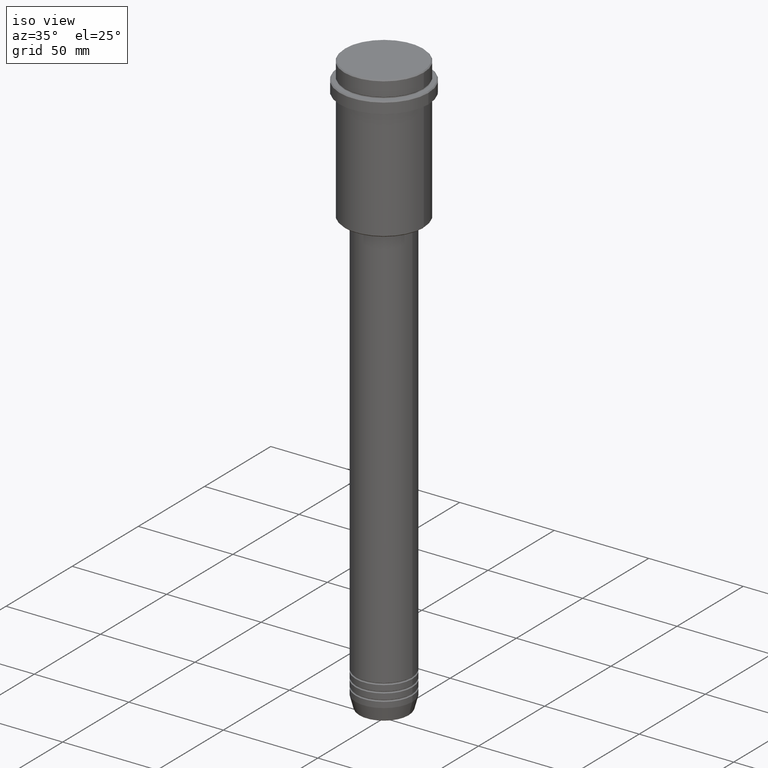
[diagram: clean part render]
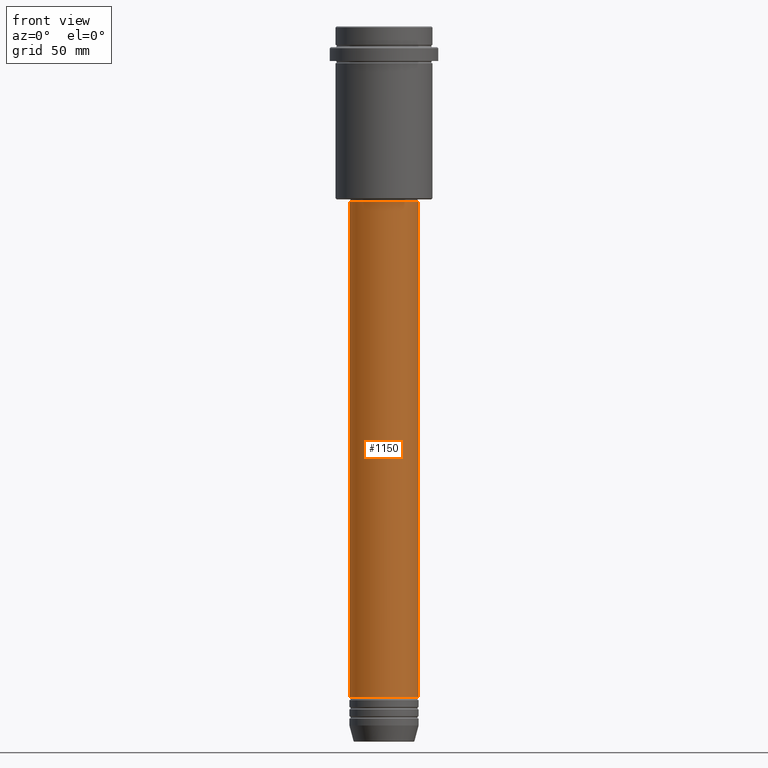
[diagram: tour spotlight — one face highlighted and labeled with its STEP entity id]
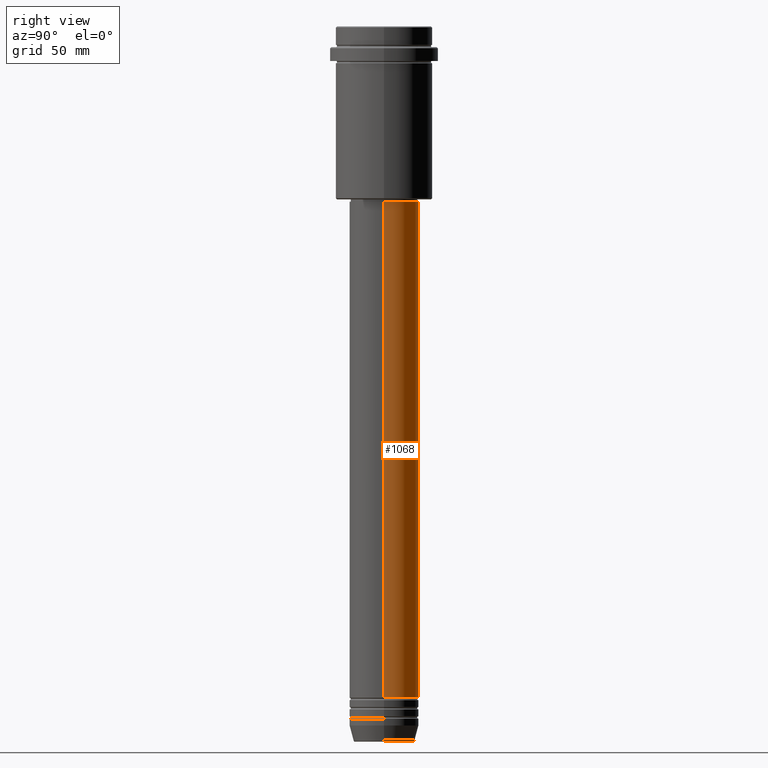
[diagram: tour spotlight — one face highlighted and labeled with its STEP entity id]
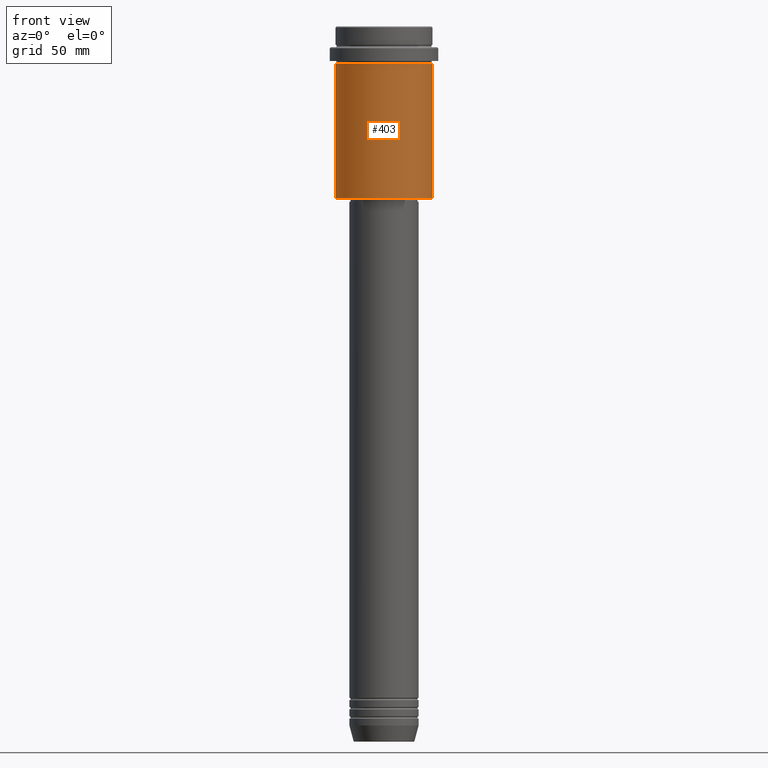
[diagram: tour spotlight — one face highlighted and labeled with its STEP entity id]
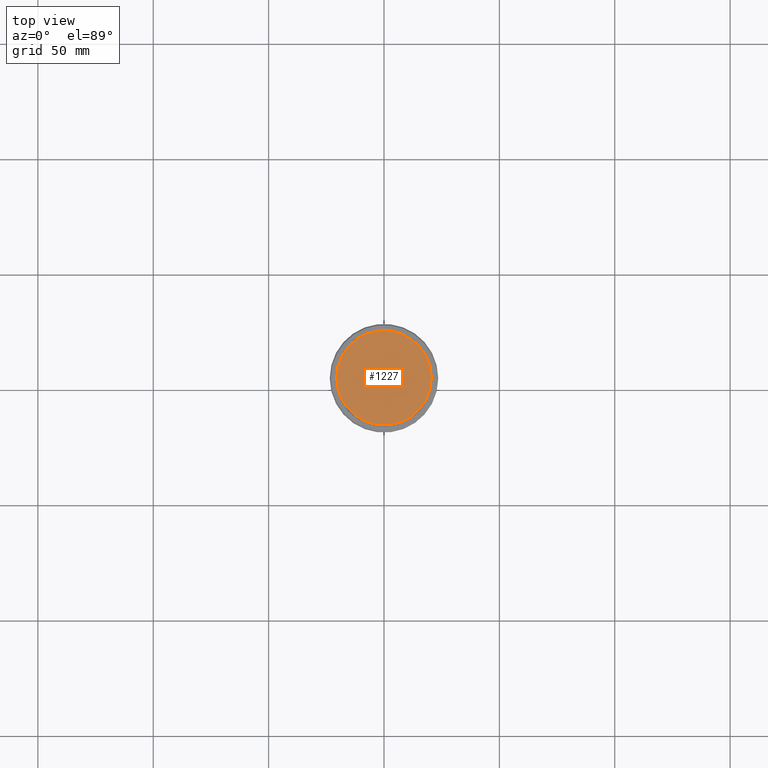
[diagram: tour spotlight — one face highlighted and labeled with its STEP entity id]
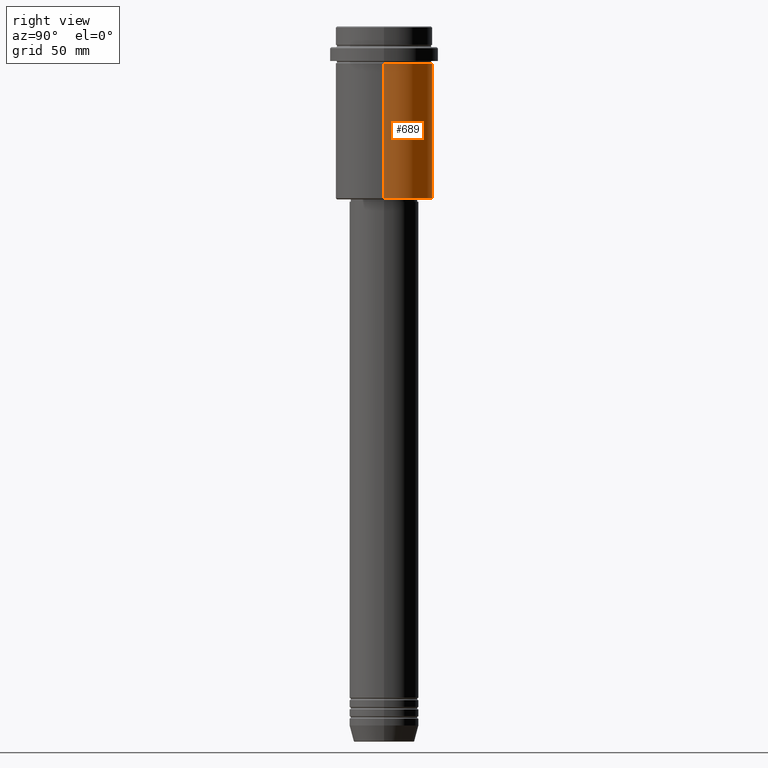
[diagram: tour spotlight — one face highlighted and labeled with its STEP entity id]
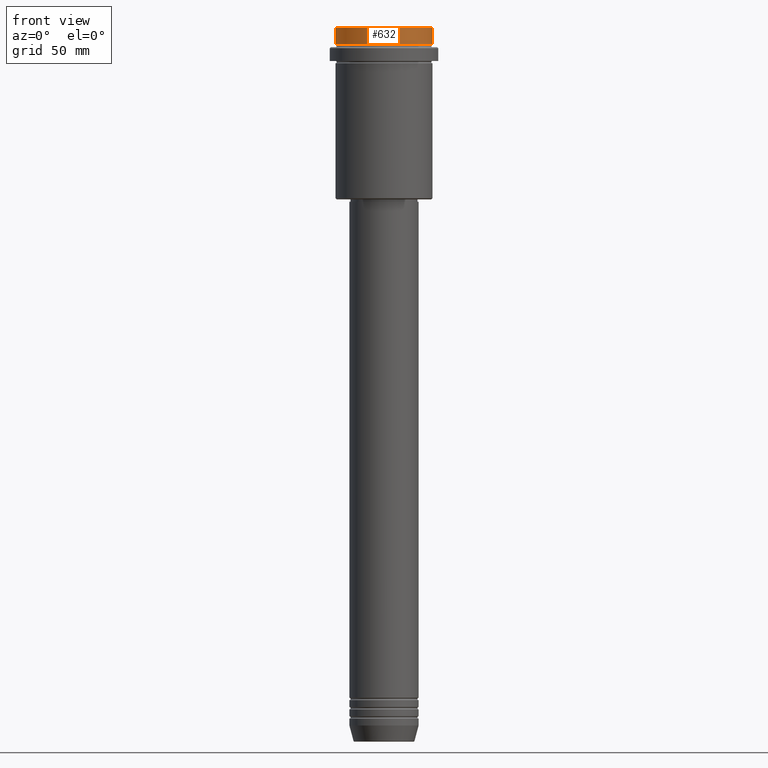
[diagram: tour spotlight — one face highlighted and labeled with its STEP entity id]
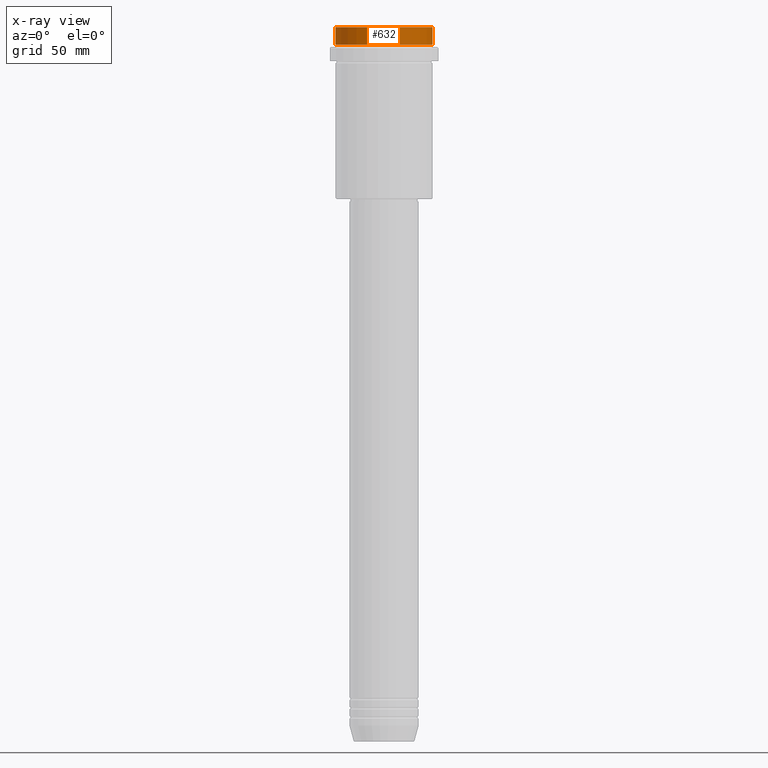
[diagram: x-ray of the same camera — body ghosted, this tour face saturated]
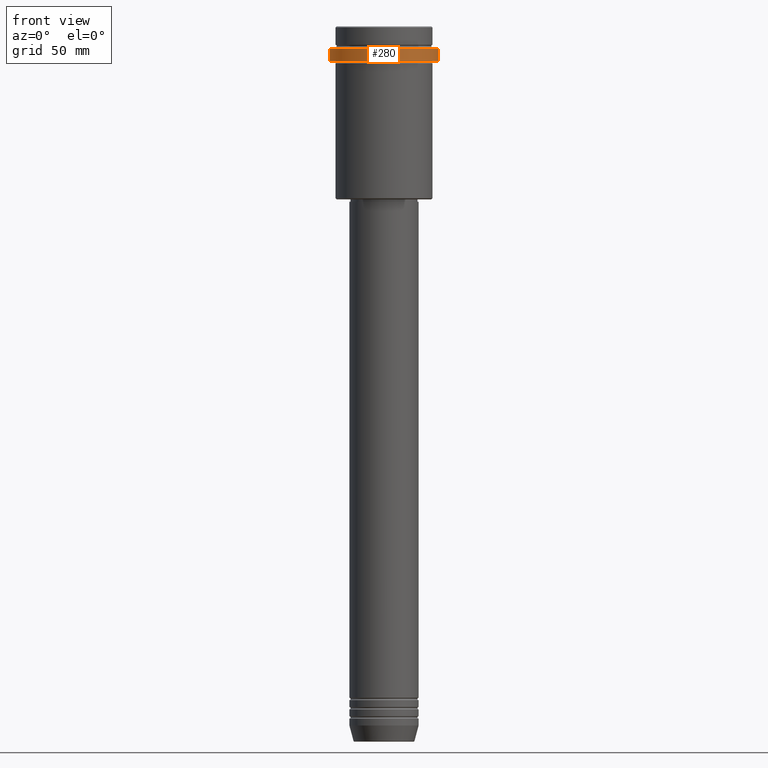
[diagram: tour spotlight — one face highlighted and labeled with its STEP entity id]
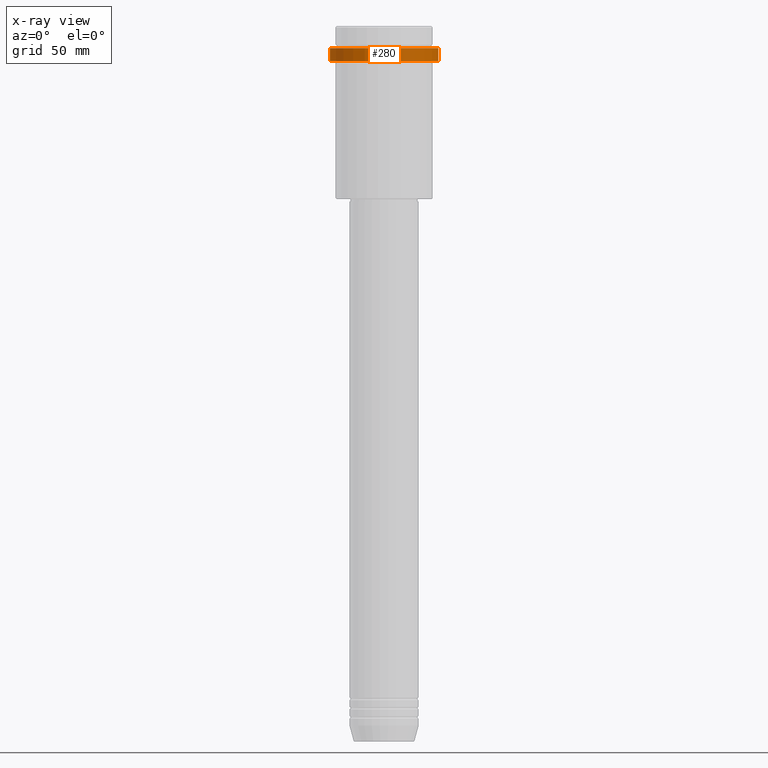
[diagram: x-ray of the same camera — body ghosted, this tour face saturated]
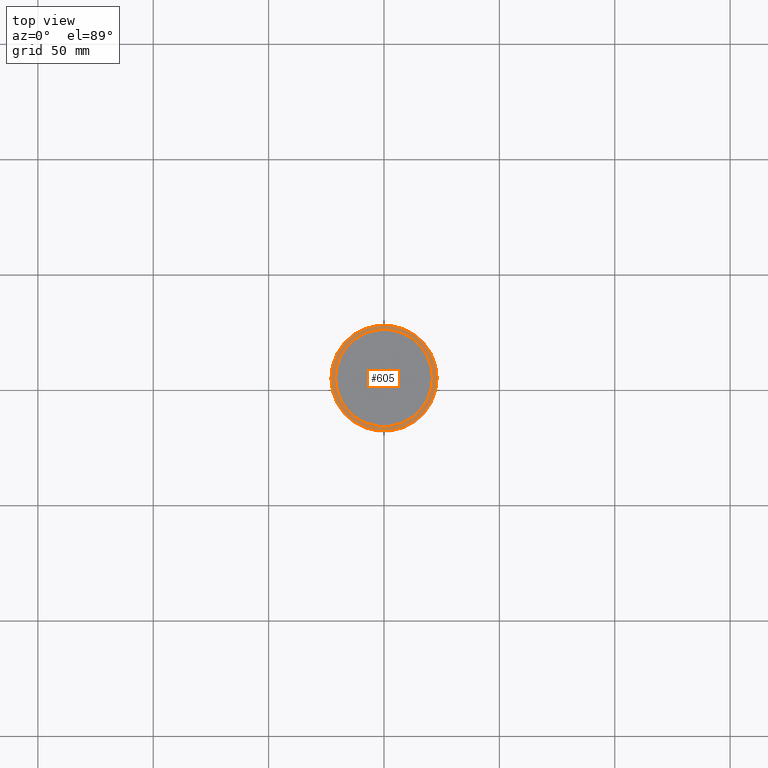
[diagram: tour spotlight — one face highlighted and labeled with its STEP entity id]
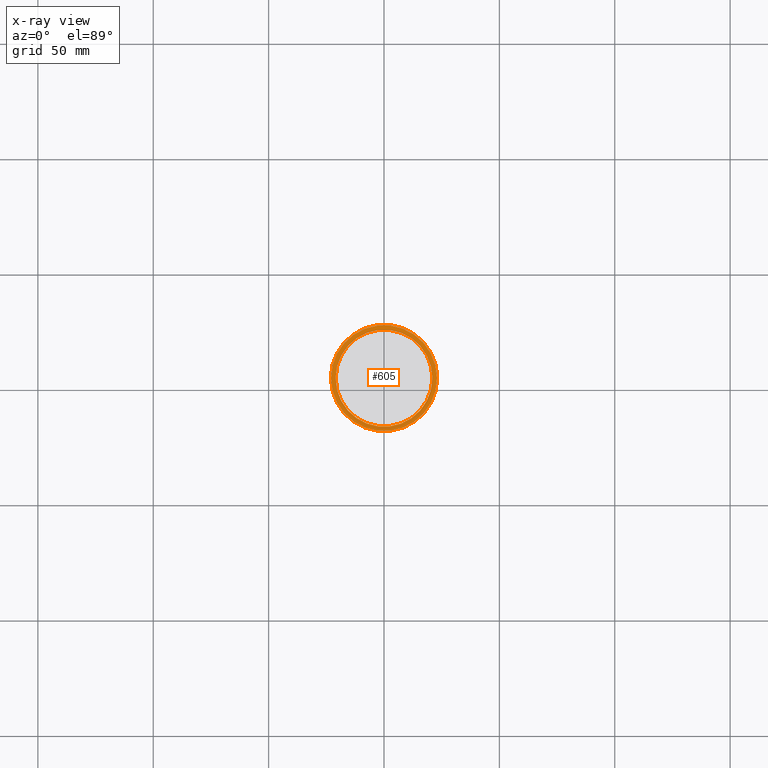
[diagram: x-ray of the same camera — body ghosted, this tour face saturated]
A machine part: a face-by-face anatomy tour. The part has 52 B-rep faces; the first image is the clean iso view, then the 8 largest visible faces are spotlighted one at a time (largest first), each with its STEP entity span.

Face 1 — front view, entity #1150. In plain terms, the highlighted cylindrical surface (edge-blend (fillet) strip) has radius 15 mm, axis along (-0, -0, 1).
Definition (entity closure, byte-faithful):
#61 = AXIS2_PLACEMENT_3D ( 'NONE', #944, #93, #732 ) ;
#64 = VERTEX_POINT ( 'NONE', #300 ) ;
#77 = ORIENTED_EDGE ( 'NONE', *, *, #273, .T. ) ;
#93 = DIRECTION ( 'NONE',  ( -0.000000000000000000, -0.000000000000000000, 1.000000000000000000 ) ) ;
#189 = CARTESIAN_POINT ( 'NONE',  ( 0.000000000000000000, 0.000000000000000000, -290.9999999999998863 ) ) ;
#199 = CIRCLE ( 'NONE', #945, 15.00000000000000000 ) ;
#236 = CARTESIAN_POINT ( 'NONE',  ( -15.00000000000000000, 1.836970198721029589E-15, 0.000000000000000000 ) ) ;
#273 = EDGE_CURVE ( 'NONE', #595, #332, #398, .T. ) ;
#276 = ORIENTED_EDGE ( 'NONE', *, *, #1369, .F. ) ;
#279 = DIRECTION ( 'NONE',  ( -0.000000000000000000, -0.000000000000000000, 1.000000000000000000 ) ) ;
#300 = CARTESIAN_POINT ( 'NONE',  ( -15.00000000000000000, 1.836970198721029589E-15, -290.9999999999998863 ) ) ;
#332 = VERTEX_POINT ( 'NONE', #873 ) ;
#385 = DIRECTION ( 'NONE',  ( -0.000000000000000000, -0.000000000000000000, 1.000000000000000000 ) ) ;
#391 = FACE_OUTER_BOUND ( 'NONE', #716, .T. ) ;
#398 = LINE ( 'NONE', #719, #584 ) ;
#407 = ORIENTED_EDGE ( 'NONE', *, *, #459, .T. ) ;
#452 = LINE ( 'NONE', #236, #618 ) ;
#459 = EDGE_CURVE ( 'NONE', #64, #595, #199, .T. ) ;
#529 = EDGE_CURVE ( 'NONE', #1182, #332, #1183, .T. ) ;
#584 = VECTOR ( 'NONE', #831, 1000.000000000000000 ) ;
#595 = VERTEX_POINT ( 'NONE', #775 ) ;
#618 = VECTOR ( 'NONE', #669, 1000.000000000000000 ) ;
#657 = AXIS2_PLACEMENT_3D ( 'NONE', #1257, #279, #839 ) ;
#669 = DIRECTION ( 'NONE',  ( -0.000000000000000000, -0.000000000000000000, 1.000000000000000000 ) ) ;
#716 = EDGE_LOOP ( 'NONE', ( #276, #407, #77, #1400 ) ) ;
#719 = CARTESIAN_POINT ( 'NONE',  ( 15.00000000000000000, 0.000000000000000000, 0.000000000000000000 ) ) ;
#732 = DIRECTION ( 'NONE',  ( 1.000000000000000000, 0.000000000000000000, 0.000000000000000000 ) ) ;
#775 = CARTESIAN_POINT ( 'NONE',  ( 15.00000000000000000, 0.000000000000000000, -290.9999999999998863 ) ) ;
#796 = DIRECTION ( 'NONE',  ( 1.000000000000000000, 0.000000000000000000, 0.000000000000000000 ) ) ;
#824 = CYLINDRICAL_SURFACE ( 'NONE', #657, 15.00000000000000000 ) ;
#831 = DIRECTION ( 'NONE',  ( -0.000000000000000000, -0.000000000000000000, 1.000000000000000000 ) ) ;
#839 = DIRECTION ( 'NONE',  ( 1.000000000000000000, 0.000000000000000000, 0.000000000000000000 ) ) ;
#873 = CARTESIAN_POINT ( 'NONE',  ( 15.00000000000000000, 0.000000000000000000, -75.99999999999992895 ) ) ;
#944 = CARTESIAN_POINT ( 'NONE',  ( 0.000000000000000000, 0.000000000000000000, -75.99999999999992895 ) ) ;
#945 = AXIS2_PLACEMENT_3D ( 'NONE', #189, #385, #796 ) ;
#1048 = CARTESIAN_POINT ( 'NONE',  ( -15.00000000000000000, 1.836970198721029589E-15, -75.99999999999992895 ) ) ;
#1150 = ADVANCED_FACE ( 'NONE', ( #391 ), #824, .T. ) ;
#1182 = VERTEX_POINT ( 'NONE', #1048 ) ;
#1183 = CIRCLE ( 'NONE', #61, 15.00000000000000000 ) ;
#1257 = CARTESIAN_POINT ( 'NONE',  ( 0.000000000000000000, 0.000000000000000000, 0.000000000000000000 ) ) ;
#1369 = EDGE_CURVE ( 'NONE', #64, #1182, #452, .T. ) ;
#1400 = ORIENTED_EDGE ( 'NONE', *, *, #529, .F. ) ;

Face 2 — right view, entity #1068. In plain terms, the highlighted cylindrical surface (edge-blend (fillet) strip) has radius 15 mm, axis along (-0, -0, 1).
Definition (entity closure, byte-faithful):
#64 = VERTEX_POINT ( 'NONE', #300 ) ;
#211 = ORIENTED_EDGE ( 'NONE', *, *, #826, .T. ) ;
#236 = CARTESIAN_POINT ( 'NONE',  ( -15.00000000000000000, 1.836970198721029589E-15, 0.000000000000000000 ) ) ;
#250 = DIRECTION ( 'NONE',  ( -0.000000000000000000, -0.000000000000000000, 1.000000000000000000 ) ) ;
#273 = EDGE_CURVE ( 'NONE', #595, #332, #398, .T. ) ;
#300 = CARTESIAN_POINT ( 'NONE',  ( -15.00000000000000000, 1.836970198721029589E-15, -290.9999999999998863 ) ) ;
#332 = VERTEX_POINT ( 'NONE', #873 ) ;
#371 = CYLINDRICAL_SURFACE ( 'NONE', #613, 15.00000000000000000 ) ;
#398 = LINE ( 'NONE', #719, #584 ) ;
#452 = LINE ( 'NONE', #236, #618 ) ;
#501 = FACE_OUTER_BOUND ( 'NONE', #1088, .T. ) ;
#582 = CARTESIAN_POINT ( 'NONE',  ( 0.000000000000000000, 0.000000000000000000, 0.000000000000000000 ) ) ;
#584 = VECTOR ( 'NONE', #831, 1000.000000000000000 ) ;
#595 = VERTEX_POINT ( 'NONE', #775 ) ;
#613 = AXIS2_PLACEMENT_3D ( 'NONE', #582, #804, #931 ) ;
#618 = VECTOR ( 'NONE', #669, 1000.000000000000000 ) ;
#640 = ORIENTED_EDGE ( 'NONE', *, *, #273, .F. ) ;
#669 = DIRECTION ( 'NONE',  ( -0.000000000000000000, -0.000000000000000000, 1.000000000000000000 ) ) ;
#719 = CARTESIAN_POINT ( 'NONE',  ( 15.00000000000000000, 0.000000000000000000, 0.000000000000000000 ) ) ;
#733 = EDGE_CURVE ( 'NONE', #332, #1182, #879, .T. ) ;
#758 = CARTESIAN_POINT ( 'NONE',  ( 0.000000000000000000, 0.000000000000000000, -75.99999999999992895 ) ) ;
#775 = CARTESIAN_POINT ( 'NONE',  ( 15.00000000000000000, 0.000000000000000000, -290.9999999999998863 ) ) ;
#804 = DIRECTION ( 'NONE',  ( -0.000000000000000000, -0.000000000000000000, 1.000000000000000000 ) ) ;
#826 = EDGE_CURVE ( 'NONE', #595, #64, #1210, .T. ) ;
#831 = DIRECTION ( 'NONE',  ( -0.000000000000000000, -0.000000000000000000, 1.000000000000000000 ) ) ;
#873 = CARTESIAN_POINT ( 'NONE',  ( 15.00000000000000000, 0.000000000000000000, -75.99999999999992895 ) ) ;
#879 = CIRCLE ( 'NONE', #1340, 15.00000000000000000 ) ;
#891 = DIRECTION ( 'NONE',  ( 1.000000000000000000, 0.000000000000000000, 0.000000000000000000 ) ) ;
#907 = ORIENTED_EDGE ( 'NONE', *, *, #733, .F. ) ;
#931 = DIRECTION ( 'NONE',  ( 1.000000000000000000, 0.000000000000000000, 0.000000000000000000 ) ) ;
#963 = AXIS2_PLACEMENT_3D ( 'NONE', #1332, #250, #891 ) ;
#1040 = DIRECTION ( 'NONE',  ( -0.000000000000000000, -0.000000000000000000, 1.000000000000000000 ) ) ;
#1048 = CARTESIAN_POINT ( 'NONE',  ( -15.00000000000000000, 1.836970198721029589E-15, -75.99999999999992895 ) ) ;
#1068 = ADVANCED_FACE ( 'NONE', ( #501 ), #371, .T. ) ;
#1088 = EDGE_LOOP ( 'NONE', ( #211, #1308, #907, #640 ) ) ;
#1180 = DIRECTION ( 'NONE',  ( 1.000000000000000000, 0.000000000000000000, 0.000000000000000000 ) ) ;
#1182 = VERTEX_POINT ( 'NONE', #1048 ) ;
#1210 = CIRCLE ( 'NONE', #963, 15.00000000000000000 ) ;
#1308 = ORIENTED_EDGE ( 'NONE', *, *, #1369, .T. ) ;
#1332 = CARTESIAN_POINT ( 'NONE',  ( 0.000000000000000000, 0.000000000000000000, -290.9999999999998863 ) ) ;
#1340 = AXIS2_PLACEMENT_3D ( 'NONE', #758, #1040, #1180 ) ;
#1369 = EDGE_CURVE ( 'NONE', #64, #1182, #452, .T. ) ;

Face 3 — front view, entity #403. In plain terms, the highlighted cylindrical surface (partial cylindrical patch) has radius 21 mm, axis along (-0, -0, 1).
Definition (entity closure, byte-faithful):
#11 = VECTOR ( 'NONE', #1335, 1000.000000000000000 ) ;
#83 = EDGE_LOOP ( 'NONE', ( #1063, #114, #943, #1230 ) ) ;
#86 = CARTESIAN_POINT ( 'NONE',  ( 0.000000000000000000, 0.000000000000000000, -16.00000000000000355 ) ) ;
#109 = EDGE_CURVE ( 'NONE', #648, #218, #1337, .T. ) ;
#114 = ORIENTED_EDGE ( 'NONE', *, *, #109, .T. ) ;
#165 = EDGE_CURVE ( 'NONE', #648, #514, #681, .T. ) ;
#218 = VERTEX_POINT ( 'NONE', #994 ) ;
#244 = VECTOR ( 'NONE', #377, 1000.000000000000000 ) ;
#307 = DIRECTION ( 'NONE',  ( -0.000000000000000000, -0.000000000000000000, 1.000000000000000000 ) ) ;
#372 = EDGE_CURVE ( 'NONE', #218, #1273, #1016, .T. ) ;
#377 = DIRECTION ( 'NONE',  ( -0.000000000000000000, -0.000000000000000000, 1.000000000000000000 ) ) ;
#403 = ADVANCED_FACE ( 'NONE', ( #1005 ), #710, .T. ) ;
#405 = DIRECTION ( 'NONE',  ( -0.000000000000000000, -0.000000000000000000, 1.000000000000000000 ) ) ;
#476 = DIRECTION ( 'NONE',  ( -0.000000000000000000, -0.000000000000000000, 1.000000000000000000 ) ) ;
#492 = AXIS2_PLACEMENT_3D ( 'NONE', #1179, #307, #1065 ) ;
#497 = CARTESIAN_POINT ( 'NONE',  ( 20.99999999999999645, 0.000000000000000000, 0.000000000000000000 ) ) ;
#499 = AXIS2_PLACEMENT_3D ( 'NONE', #1037, #476, #1229 ) ;
#500 = CIRCLE ( 'NONE', #793, 20.99999999999999645 ) ;
#514 = VERTEX_POINT ( 'NONE', #1066 ) ;
#648 = VERTEX_POINT ( 'NONE', #1043 ) ;
#681 = LINE ( 'NONE', #1091, #11 ) ;
#683 = EDGE_CURVE ( 'NONE', #514, #1273, #500, .T. ) ;
#710 = CYLINDRICAL_SURFACE ( 'NONE', #499, 20.99999999999999645 ) ;
#793 = AXIS2_PLACEMENT_3D ( 'NONE', #86, #405, #1399 ) ;
#943 = ORIENTED_EDGE ( 'NONE', *, *, #372, .T. ) ;
#994 = CARTESIAN_POINT ( 'NONE',  ( 20.99999999999999645, 0.000000000000000000, -74.50000000000002842 ) ) ;
#1005 = FACE_OUTER_BOUND ( 'NONE', #83, .T. ) ;
#1016 = LINE ( 'NONE', #497, #244 ) ;
#1037 = CARTESIAN_POINT ( 'NONE',  ( 0.000000000000000000, 0.000000000000000000, 0.000000000000000000 ) ) ;
#1043 = CARTESIAN_POINT ( 'NONE',  ( -20.99999999999999645, 2.571758278209441267E-15, -74.50000000000002842 ) ) ;
#1063 = ORIENTED_EDGE ( 'NONE', *, *, #165, .F. ) ;
#1065 = DIRECTION ( 'NONE',  ( -1.000000000000000000, 0.000000000000000000, 0.000000000000000000 ) ) ;
#1066 = CARTESIAN_POINT ( 'NONE',  ( -20.99999999999999645, 2.571758278209441267E-15, -16.00000000000000355 ) ) ;
#1091 = CARTESIAN_POINT ( 'NONE',  ( -20.99999999999999645, 2.571758278209441267E-15, 0.000000000000000000 ) ) ;
#1171 = CARTESIAN_POINT ( 'NONE',  ( 20.99999999999999645, 0.000000000000000000, -16.00000000000000355 ) ) ;
#1179 = CARTESIAN_POINT ( 'NONE',  ( 0.000000000000000000, 0.000000000000000000, -74.50000000000002842 ) ) ;
#1229 = DIRECTION ( 'NONE',  ( 1.000000000000000000, 0.000000000000000000, 0.000000000000000000 ) ) ;
#1230 = ORIENTED_EDGE ( 'NONE', *, *, #683, .F. ) ;
#1273 = VERTEX_POINT ( 'NONE', #1171 ) ;
#1335 = DIRECTION ( 'NONE',  ( -0.000000000000000000, -0.000000000000000000, 1.000000000000000000 ) ) ;
#1337 = CIRCLE ( 'NONE', #492, 20.99999999999999645 ) ;
#1399 = DIRECTION ( 'NONE',  ( 1.000000000000000000, 0.000000000000000000, 0.000000000000000000 ) ) ;

Face 4 — top view, entity #1227. In plain terms, the highlighted planar face has unit normal (0, -0, 1).
Definition (entity closure, byte-faithful):
#43 = CARTESIAN_POINT ( 'NONE',  ( -20.50000000000004619, 0.000000000000000000, 0.000000000000000000 ) ) ;
#71 = CARTESIAN_POINT ( 'NONE',  ( 0.000000000000000000, 0.000000000000000000, 0.000000000000000000 ) ) ;
#129 = VERTEX_POINT ( 'NONE', #43 ) ;
#378 = VERTEX_POINT ( 'NONE', #1367 ) ;
#510 = DIRECTION ( 'NONE',  ( -0.000000000000000000, -0.000000000000000000, 1.000000000000000000 ) ) ;
#575 = ORIENTED_EDGE ( 'NONE', *, *, #661, .T. ) ;
#611 = CIRCLE ( 'NONE', #856, 20.50000000000004619 ) ;
#656 = AXIS2_PLACEMENT_3D ( 'NONE', #71, #510, #938 ) ;
#661 = EDGE_CURVE ( 'NONE', #129, #378, #1009, .T. ) ;
#665 = EDGE_CURVE ( 'NONE', #378, #129, #611, .T. ) ;
#730 = CARTESIAN_POINT ( 'NONE',  ( 0.000000000000000000, 0.000000000000000000, 0.000000000000000000 ) ) ;
#740 = DIRECTION ( 'NONE',  ( 0.000000000000000000, -0.000000000000000000, 1.000000000000000000 ) ) ;
#741 = DIRECTION ( 'NONE',  ( 1.000000000000000000, 0.000000000000000000, 0.000000000000000000 ) ) ;
#770 = EDGE_LOOP ( 'NONE', ( #575, #1300 ) ) ;
#830 = FACE_OUTER_BOUND ( 'NONE', #770, .T. ) ;
#838 = AXIS2_PLACEMENT_3D ( 'NONE', #1267, #740, #1408 ) ;
#856 = AXIS2_PLACEMENT_3D ( 'NONE', #730, #1282, #741 ) ;
#938 = DIRECTION ( 'NONE',  ( 1.000000000000000000, 0.000000000000000000, 0.000000000000000000 ) ) ;
#962 = PLANE ( 'NONE',  #838 ) ;
#1009 = CIRCLE ( 'NONE', #656, 20.50000000000004619 ) ;
#1227 = ADVANCED_FACE ( 'NONE', ( #830 ), #962, .T. ) ;
#1267 = CARTESIAN_POINT ( 'NONE',  ( 0.000000000000000000, 0.000000000000000000, 0.000000000000000000 ) ) ;
#1282 = DIRECTION ( 'NONE',  ( -0.000000000000000000, -0.000000000000000000, 1.000000000000000000 ) ) ;
#1300 = ORIENTED_EDGE ( 'NONE', *, *, #665, .T. ) ;
#1367 = CARTESIAN_POINT ( 'NONE',  ( 20.50000000000004619, 2.541142108230760635E-15, 0.000000000000000000 ) ) ;
#1408 = DIRECTION ( 'NONE',  ( 1.000000000000000000, 0.000000000000000000, 0.000000000000000000 ) ) ;

Face 5 — right view, entity #689. In plain terms, the highlighted cylindrical surface (partial cylindrical patch) has radius 21 mm, axis along (-0, -0, 1).
Definition (entity closure, byte-faithful):
#11 = VECTOR ( 'NONE', #1335, 1000.000000000000000 ) ;
#113 = CARTESIAN_POINT ( 'NONE',  ( 0.000000000000000000, 0.000000000000000000, -16.00000000000000355 ) ) ;
#165 = EDGE_CURVE ( 'NONE', #648, #514, #681, .T. ) ;
#208 = CARTESIAN_POINT ( 'NONE',  ( 0.000000000000000000, 0.000000000000000000, 0.000000000000000000 ) ) ;
#218 = VERTEX_POINT ( 'NONE', #994 ) ;
#244 = VECTOR ( 'NONE', #377, 1000.000000000000000 ) ;
#266 = AXIS2_PLACEMENT_3D ( 'NONE', #208, #865, #304 ) ;
#304 = DIRECTION ( 'NONE',  ( 1.000000000000000000, 0.000000000000000000, 0.000000000000000000 ) ) ;
#372 = EDGE_CURVE ( 'NONE', #218, #1273, #1016, .T. ) ;
#377 = DIRECTION ( 'NONE',  ( -0.000000000000000000, -0.000000000000000000, 1.000000000000000000 ) ) ;
#442 = DIRECTION ( 'NONE',  ( 1.000000000000000000, 0.000000000000000000, 0.000000000000000000 ) ) ;
#468 = DIRECTION ( 'NONE',  ( -1.000000000000000000, 0.000000000000000000, 0.000000000000000000 ) ) ;
#475 = AXIS2_PLACEMENT_3D ( 'NONE', #598, #787, #468 ) ;
#497 = CARTESIAN_POINT ( 'NONE',  ( 20.99999999999999645, 0.000000000000000000, 0.000000000000000000 ) ) ;
#514 = VERTEX_POINT ( 'NONE', #1066 ) ;
#591 = EDGE_LOOP ( 'NONE', ( #1135, #781, #834, #977 ) ) ;
#598 = CARTESIAN_POINT ( 'NONE',  ( 0.000000000000000000, 0.000000000000000000, -74.50000000000002842 ) ) ;
#648 = VERTEX_POINT ( 'NONE', #1043 ) ;
#681 = LINE ( 'NONE', #1091, #11 ) ;
#689 = ADVANCED_FACE ( 'NONE', ( #841 ), #1288, .T. ) ;
#781 = ORIENTED_EDGE ( 'NONE', *, *, #165, .T. ) ;
#787 = DIRECTION ( 'NONE',  ( -0.000000000000000000, -0.000000000000000000, 1.000000000000000000 ) ) ;
#805 = EDGE_CURVE ( 'NONE', #218, #648, #1362, .T. ) ;
#834 = ORIENTED_EDGE ( 'NONE', *, *, #1355, .F. ) ;
#841 = FACE_OUTER_BOUND ( 'NONE', #591, .T. ) ;
#865 = DIRECTION ( 'NONE',  ( -0.000000000000000000, -0.000000000000000000, 1.000000000000000000 ) ) ;
#977 = ORIENTED_EDGE ( 'NONE', *, *, #372, .F. ) ;
#978 = DIRECTION ( 'NONE',  ( -0.000000000000000000, -0.000000000000000000, 1.000000000000000000 ) ) ;
#994 = CARTESIAN_POINT ( 'NONE',  ( 20.99999999999999645, 0.000000000000000000, -74.50000000000002842 ) ) ;
#1016 = LINE ( 'NONE', #497, #244 ) ;
#1043 = CARTESIAN_POINT ( 'NONE',  ( -20.99999999999999645, 2.571758278209441267E-15, -74.50000000000002842 ) ) ;
#1066 = CARTESIAN_POINT ( 'NONE',  ( -20.99999999999999645, 2.571758278209441267E-15, -16.00000000000000355 ) ) ;
#1091 = CARTESIAN_POINT ( 'NONE',  ( -20.99999999999999645, 2.571758278209441267E-15, 0.000000000000000000 ) ) ;
#1135 = ORIENTED_EDGE ( 'NONE', *, *, #805, .T. ) ;
#1171 = CARTESIAN_POINT ( 'NONE',  ( 20.99999999999999645, 0.000000000000000000, -16.00000000000000355 ) ) ;
#1215 = CIRCLE ( 'NONE', #1219, 20.99999999999999645 ) ;
#1219 = AXIS2_PLACEMENT_3D ( 'NONE', #113, #978, #442 ) ;
#1273 = VERTEX_POINT ( 'NONE', #1171 ) ;
#1288 = CYLINDRICAL_SURFACE ( 'NONE', #266, 20.99999999999999645 ) ;
#1335 = DIRECTION ( 'NONE',  ( -0.000000000000000000, -0.000000000000000000, 1.000000000000000000 ) ) ;
#1355 = EDGE_CURVE ( 'NONE', #1273, #514, #1215, .T. ) ;
#1362 = CIRCLE ( 'NONE', #475, 20.99999999999999645 ) ;

Face 6 — front view, entity #632. An x-ray twin of the same camera follows (body ghosted, this face saturated) — the face is partly hidden behind the body. In plain terms, the highlighted cylindrical surface (partial cylindrical patch) has radius 21 mm, axis along (-0, -0, 1).
Definition (entity closure, byte-faithful):
#46 = DIRECTION ( 'NONE',  ( 1.000000000000000000, 0.000000000000000000, 0.000000000000000000 ) ) ;
#149 = DIRECTION ( 'NONE',  ( 0.000000000000000000, 0.000000000000000000, -1.000000000000000000 ) ) ;
#167 = CYLINDRICAL_SURFACE ( 'NONE', #835, 20.99999999999999645 ) ;
#178 = AXIS2_PLACEMENT_3D ( 'NONE', #1117, #149, #46 ) ;
#216 = ORIENTED_EDGE ( 'NONE', *, *, #1124, .T. ) ;
#247 = VECTOR ( 'NONE', #687, 1000.000000000000000 ) ;
#281 = DIRECTION ( 'NONE',  ( 1.000000000000000000, 0.000000000000000000, 0.000000000000000000 ) ) ;
#306 = DIRECTION ( 'NONE',  ( -0.000000000000000000, -0.000000000000000000, 1.000000000000000000 ) ) ;
#420 = DIRECTION ( 'NONE',  ( 1.000000000000000000, 0.000000000000000000, 0.000000000000000000 ) ) ;
#490 = VERTEX_POINT ( 'NONE', #1121 ) ;
#513 = FACE_OUTER_BOUND ( 'NONE', #1006, .T. ) ;
#548 = EDGE_CURVE ( 'NONE', #490, #828, #627, .T. ) ;
#557 = CARTESIAN_POINT ( 'NONE',  ( -20.99999999999999645, 2.571758278209441267E-15, -0.4999999999999518718 ) ) ;
#627 = LINE ( 'NONE', #639, #744 ) ;
#632 = ADVANCED_FACE ( 'NONE', ( #513 ), #167, .T. ) ;
#639 = CARTESIAN_POINT ( 'NONE',  ( -20.99999999999999645, 2.571758278209441267E-15, 0.000000000000000000 ) ) ;
#671 = CARTESIAN_POINT ( 'NONE',  ( 20.99999999999999645, 0.000000000000000000, -0.4999999999999518718 ) ) ;
#687 = DIRECTION ( 'NONE',  ( -0.000000000000000000, -0.000000000000000000, 1.000000000000000000 ) ) ;
#711 = ORIENTED_EDGE ( 'NONE', *, *, #548, .F. ) ;
#744 = VECTOR ( 'NONE', #306, 1000.000000000000000 ) ;
#774 = LINE ( 'NONE', #1211, #247 ) ;
#803 = ORIENTED_EDGE ( 'NONE', *, *, #1170, .T. ) ;
#828 = VERTEX_POINT ( 'NONE', #557 ) ;
#835 = AXIS2_PLACEMENT_3D ( 'NONE', #1386, #1032, #281 ) ;
#878 = CARTESIAN_POINT ( 'NONE',  ( 20.99999999999999645, 0.000000000000000000, -7.999999999999998224 ) ) ;
#913 = VERTEX_POINT ( 'NONE', #671 ) ;
#919 = VERTEX_POINT ( 'NONE', #878 ) ;
#936 = EDGE_CURVE ( 'NONE', #919, #913, #774, .T. ) ;
#957 = DIRECTION ( 'NONE',  ( -0.000000000000000000, -0.000000000000000000, 1.000000000000000000 ) ) ;
#1006 = EDGE_LOOP ( 'NONE', ( #711, #803, #1391, #216 ) ) ;
#1032 = DIRECTION ( 'NONE',  ( -0.000000000000000000, -0.000000000000000000, 1.000000000000000000 ) ) ;
#1078 = CIRCLE ( 'NONE', #1098, 20.99999999999999645 ) ;
#1098 = AXIS2_PLACEMENT_3D ( 'NONE', #1392, #957, #420 ) ;
#1117 = CARTESIAN_POINT ( 'NONE',  ( 0.000000000000000000, 0.000000000000000000, -0.4999999999999518718 ) ) ;
#1121 = CARTESIAN_POINT ( 'NONE',  ( -20.99999999999999645, 2.571758278209441267E-15, -7.999999999999998224 ) ) ;
#1124 = EDGE_CURVE ( 'NONE', #913, #828, #1214, .T. ) ;
#1170 = EDGE_CURVE ( 'NONE', #490, #919, #1078, .T. ) ;
#1211 = CARTESIAN_POINT ( 'NONE',  ( 20.99999999999999645, 0.000000000000000000, 0.000000000000000000 ) ) ;
#1214 = CIRCLE ( 'NONE', #178, 20.99999999999999645 ) ;
#1386 = CARTESIAN_POINT ( 'NONE',  ( 0.000000000000000000, 0.000000000000000000, 0.000000000000000000 ) ) ;
#1391 = ORIENTED_EDGE ( 'NONE', *, *, #936, .T. ) ;
#1392 = CARTESIAN_POINT ( 'NONE',  ( 0.000000000000000000, 0.000000000000000000, -7.999999999999998224 ) ) ;

Face 7 — front view, entity #280. An x-ray twin of the same camera follows (body ghosted, this face saturated) — the face is partly hidden behind the body. In plain terms, the highlighted cylindrical surface (partial cylindrical patch) has radius 23.5 mm, axis along (-0, -0, 1).
Definition (entity closure, byte-faithful):
#4 = VERTEX_POINT ( 'NONE', #1252 ) ;
#8 = DIRECTION ( 'NONE',  ( 1.000000000000000000, 0.000000000000000000, 0.000000000000000000 ) ) ;
#10 = CARTESIAN_POINT ( 'NONE',  ( -23.50000000000000000, 2.877919977996280320E-15, 0.000000000000000000 ) ) ;
#17 = CIRCLE ( 'NONE', #636, 23.50000000000000000 ) ;
#21 = DIRECTION ( 'NONE',  ( -0.000000000000000000, -0.000000000000000000, 1.000000000000000000 ) ) ;
#34 = VECTOR ( 'NONE', #21, 1000.000000000000000 ) ;
#128 = VECTOR ( 'NONE', #322, 1000.000000000000000 ) ;
#190 = ORIENTED_EDGE ( 'NONE', *, *, #1051, .T. ) ;
#226 = EDGE_CURVE ( 'NONE', #362, #4, #1217, .T. ) ;
#253 = ORIENTED_EDGE ( 'NONE', *, *, #226, .F. ) ;
#278 = VERTEX_POINT ( 'NONE', #993 ) ;
#280 = ADVANCED_FACE ( 'NONE', ( #544 ), #351, .T. ) ;
#308 = CARTESIAN_POINT ( 'NONE',  ( 23.50000000000000000, 0.000000000000000000, -9.500000000000001776 ) ) ;
#322 = DIRECTION ( 'NONE',  ( -0.000000000000000000, -0.000000000000000000, 1.000000000000000000 ) ) ;
#329 = CARTESIAN_POINT ( 'NONE',  ( -23.50000000000000711, 2.877919977996281109E-15, -15.00000000000000178 ) ) ;
#349 = EDGE_CURVE ( 'NONE', #362, #278, #1271, .T. ) ;
#351 = CYLINDRICAL_SURFACE ( 'NONE', #700, 23.50000000000000000 ) ;
#362 = VERTEX_POINT ( 'NONE', #329 ) ;
#511 = VERTEX_POINT ( 'NONE', #308 ) ;
#544 = FACE_OUTER_BOUND ( 'NONE', #1199, .T. ) ;
#612 = CARTESIAN_POINT ( 'NONE',  ( 23.50000000000000000, 0.000000000000000000, 0.000000000000000000 ) ) ;
#624 = ORIENTED_EDGE ( 'NONE', *, *, #349, .T. ) ;
#636 = AXIS2_PLACEMENT_3D ( 'NONE', #1375, #920, #914 ) ;
#658 = DIRECTION ( 'NONE',  ( -0.000000000000000000, -0.000000000000000000, 1.000000000000000000 ) ) ;
#700 = AXIS2_PLACEMENT_3D ( 'NONE', #968, #767, #8 ) ;
#721 = EDGE_CURVE ( 'NONE', #278, #511, #1307, .T. ) ;
#767 = DIRECTION ( 'NONE',  ( -0.000000000000000000, -0.000000000000000000, 1.000000000000000000 ) ) ;
#914 = DIRECTION ( 'NONE',  ( 1.000000000000000000, 0.000000000000000000, 0.000000000000000000 ) ) ;
#920 = DIRECTION ( 'NONE',  ( 0.000000000000000000, 0.000000000000000000, -1.000000000000000000 ) ) ;
#922 = AXIS2_PLACEMENT_3D ( 'NONE', #975, #658, #1312 ) ;
#968 = CARTESIAN_POINT ( 'NONE',  ( 0.000000000000000000, 0.000000000000000000, 0.000000000000000000 ) ) ;
#975 = CARTESIAN_POINT ( 'NONE',  ( 0.000000000000000000, 0.000000000000000000, -15.00000000000000178 ) ) ;
#993 = CARTESIAN_POINT ( 'NONE',  ( 23.50000000000000355, 0.000000000000000000, -15.00000000000000178 ) ) ;
#1051 = EDGE_CURVE ( 'NONE', #511, #4, #17, .T. ) ;
#1155 = ORIENTED_EDGE ( 'NONE', *, *, #721, .T. ) ;
#1199 = EDGE_LOOP ( 'NONE', ( #253, #624, #1155, #190 ) ) ;
#1217 = LINE ( 'NONE', #10, #34 ) ;
#1252 = CARTESIAN_POINT ( 'NONE',  ( -23.50000000000000000, 2.877919977996280320E-15, -9.500000000000001776 ) ) ;
#1271 = CIRCLE ( 'NONE', #922, 23.50000000000000355 ) ;
#1307 = LINE ( 'NONE', #612, #128 ) ;
#1312 = DIRECTION ( 'NONE',  ( 1.000000000000000000, 0.000000000000000000, 0.000000000000000000 ) ) ;
#1375 = CARTESIAN_POINT ( 'NONE',  ( 0.000000000000000000, 0.000000000000000000, -9.500000000000001776 ) ) ;

Face 8 — top view, entity #605. An x-ray twin of the same camera follows (body ghosted, this face saturated) — the face is partly hidden behind the body. In plain terms, the highlighted planar face has unit normal (0, -0, 1).
Definition (entity closure, byte-faithful):
#40 = FACE_OUTER_BOUND ( 'NONE', #1372, .T. ) ;
#68 = CARTESIAN_POINT ( 'NONE',  ( 23.00000000000002487, 2.847303808017597717E-15, -9.000000000000001776 ) ) ;
#102 = DIRECTION ( 'NONE',  ( -0.000000000000000000, -0.000000000000000000, 1.000000000000000000 ) ) ;
#200 = AXIS2_PLACEMENT_3D ( 'NONE', #1327, #343, #677 ) ;
#206 = DIRECTION ( 'NONE',  ( 0.000000000000000000, 0.000000000000000000, -1.000000000000000000 ) ) ;
#245 = CIRCLE ( 'NONE', #858, 23.00000000000002487 ) ;
#294 = VERTEX_POINT ( 'NONE', #792 ) ;
#323 = ORIENTED_EDGE ( 'NONE', *, *, #980, .T. ) ;
#343 = DIRECTION ( 'NONE',  ( -0.000000000000000000, -0.000000000000000000, 1.000000000000000000 ) ) ;
#394 = PLANE ( 'NONE',  #725 ) ;
#411 = DIRECTION ( 'NONE',  ( 0.000000000000000000, 0.000000000000000000, -1.000000000000000000 ) ) ;
#425 = AXIS2_PLACEMENT_3D ( 'NONE', #1277, #206, #641 ) ;
#458 = ORIENTED_EDGE ( 'NONE', *, *, #1250, .T. ) ;
#491 = CARTESIAN_POINT ( 'NONE',  ( -23.00000000000002487, 0.000000000000000000, -9.000000000000001776 ) ) ;
#502 = DIRECTION ( 'NONE',  ( 0.000000000000000000, -0.000000000000000000, 1.000000000000000000 ) ) ;
#508 = CARTESIAN_POINT ( 'NONE',  ( -20.99999999999999289, 2.571758278209440872E-15, -9.000000000000001776 ) ) ;
#537 = CARTESIAN_POINT ( 'NONE',  ( 0.000000000000000000, 0.000000000000000000, -9.000000000000001776 ) ) ;
#605 = ADVANCED_FACE ( 'NONE', ( #40, #1241 ), #394, .T. ) ;
#641 = DIRECTION ( 'NONE',  ( 1.000000000000000000, 0.000000000000000000, 0.000000000000000000 ) ) ;
#677 = DIRECTION ( 'NONE',  ( 1.000000000000000000, 0.000000000000000000, 0.000000000000000000 ) ) ;
#707 = EDGE_CURVE ( 'NONE', #739, #1017, #245, .T. ) ;
#717 = CARTESIAN_POINT ( 'NONE',  ( 0.000000000000000000, 0.000000000000000000, -9.000000000000001776 ) ) ;
#725 = AXIS2_PLACEMENT_3D ( 'NONE', #1260, #502, #1261 ) ;
#739 = VERTEX_POINT ( 'NONE', #68 ) ;
#766 = CIRCLE ( 'NONE', #200, 23.00000000000002487 ) ;
#784 = EDGE_LOOP ( 'NONE', ( #458, #1354 ) ) ;
#792 = CARTESIAN_POINT ( 'NONE',  ( 20.99999999999999289, 0.000000000000000000, -9.000000000000001776 ) ) ;
#811 = ORIENTED_EDGE ( 'NONE', *, *, #707, .T. ) ;
#843 = DIRECTION ( 'NONE',  ( 1.000000000000000000, 0.000000000000000000, 0.000000000000000000 ) ) ;
#858 = AXIS2_PLACEMENT_3D ( 'NONE', #717, #102, #1413 ) ;
#859 = AXIS2_PLACEMENT_3D ( 'NONE', #537, #411, #843 ) ;
#980 = EDGE_CURVE ( 'NONE', #1017, #739, #766, .T. ) ;
#1017 = VERTEX_POINT ( 'NONE', #491 ) ;
#1070 = VERTEX_POINT ( 'NONE', #508 ) ;
#1145 = CIRCLE ( 'NONE', #425, 20.99999999999999289 ) ;
#1173 = EDGE_CURVE ( 'NONE', #1070, #294, #1319, .T. ) ;
#1241 = FACE_BOUND ( 'NONE', #784, .T. ) ;
#1250 = EDGE_CURVE ( 'NONE', #294, #1070, #1145, .T. ) ;
#1260 = CARTESIAN_POINT ( 'NONE',  ( 0.000000000000000000, 20.49999999999999645, -9.000000000000001776 ) ) ;
#1261 = DIRECTION ( 'NONE',  ( 1.000000000000000000, 0.000000000000000000, 0.000000000000000000 ) ) ;
#1277 = CARTESIAN_POINT ( 'NONE',  ( 0.000000000000000000, 0.000000000000000000, -9.000000000000001776 ) ) ;
#1319 = CIRCLE ( 'NONE', #859, 20.99999999999999289 ) ;
#1327 = CARTESIAN_POINT ( 'NONE',  ( 0.000000000000000000, 0.000000000000000000, -9.000000000000001776 ) ) ;
#1354 = ORIENTED_EDGE ( 'NONE', *, *, #1173, .T. ) ;
#1372 = EDGE_LOOP ( 'NONE', ( #323, #811 ) ) ;
#1413 = DIRECTION ( 'NONE',  ( 1.000000000000000000, 0.000000000000000000, 0.000000000000000000 ) ) ;